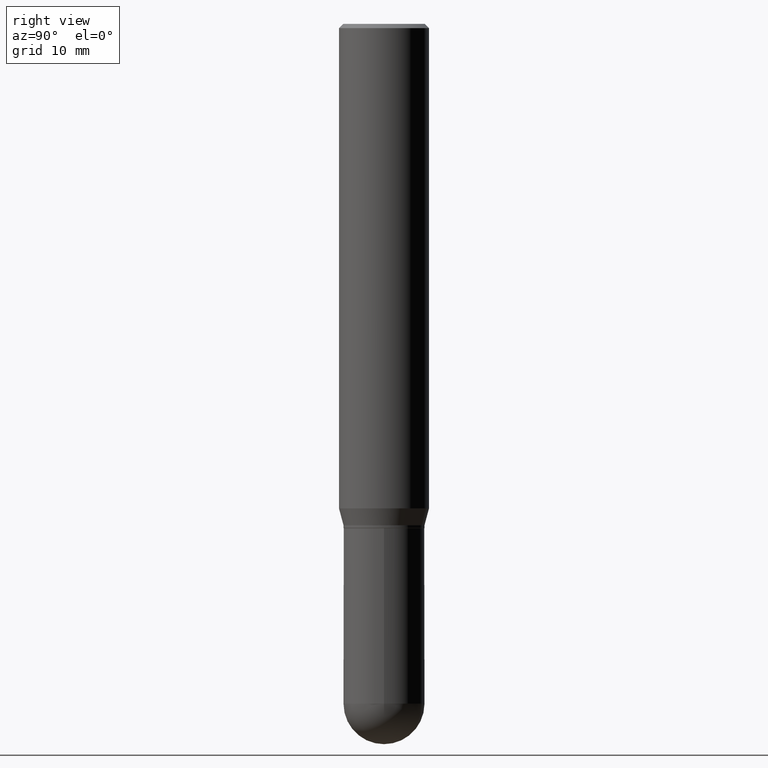
[diagram: clean part render]
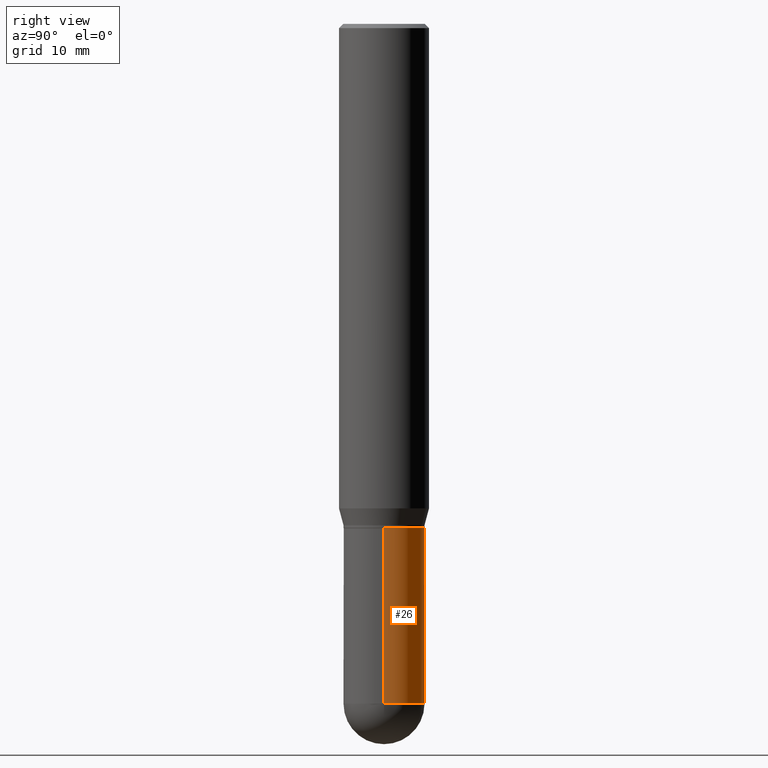
[diagram: same view with one face highlighted and labeled with its STEP entity id]
A machine part, right view. The second image highlights one B-rep face of the part: STEP entity #26.
In plain terms, the highlighted cylindrical surface (partial cylindrical patch) has radius 3.5712 mm, axis along (-0, 0, 1).
Its self-contained STEP definition (entity closure, byte-faithful):
#26 = ADVANCED_FACE ( 'NONE', ( #278 ), #209, .T. ) ;
#35 = CARTESIAN_POINT ( 'NONE',  ( -0.1406000000000000028, -6.174923620442310269E-15, -1.750000000000000222 ) ) ;
#47 = CARTESIAN_POINT ( 'NONE',  ( -0.1406000000000000583, -6.174923620442310269E-15, -2.359399999999999942 ) ) ;
#52 = CARTESIAN_POINT ( 'NONE',  ( 0.1406000000000000028, -9.818045524826893030E-16, 6.855904546769086274E-30 ) ) ;
#54 = CARTESIAN_POINT ( 'NONE',  ( 0.1406000000000000028, -7.091896895458194566E-15, -1.750000000000000222 ) ) ;
#57 = EDGE_CURVE ( 'NONE', #87, #416, #212, .T. ) ;
#71 = CARTESIAN_POINT ( 'NONE',  ( 4.279570410823989044E-29, -6.110092342975505460E-15, -1.750000000000000222 ) ) ;
#76 = VERTEX_POINT ( 'NONE', #47 ) ;
#87 = VERTEX_POINT ( 'NONE', #54 ) ;
#90 = LINE ( 'NONE', #52, #274 ) ;
#104 = CARTESIAN_POINT ( 'NONE',  ( -0.1406000000000000028, 9.990230864787008809E-16, -6.916022736898399140E-30 ) ) ;
#112 = ORIENTED_EDGE ( 'NONE', *, *, #297, .T. ) ;
#127 = CARTESIAN_POINT ( 'NONE',  ( 0.1406000000000000583, -8.155751259403701439E-15, -2.359399999999999942 ) ) ;
#164 = CIRCLE ( 'NONE', #269, 0.1406000000000000305 ) ;
#171 = ORIENTED_EDGE ( 'NONE', *, *, #363, .T. ) ;
#177 = DIRECTION ( 'NONE',  ( -2.445468806185136597E-29, 3.491481338843145583E-15, 1.000000000000000000 ) ) ;
#209 = CYLINDRICAL_SURFACE ( 'NONE', #222, 0.1406000000000000028 ) ;
#212 = CIRCLE ( 'NONE', #260, 0.1406000000000000028 ) ;
#221 = EDGE_CURVE ( 'NONE', #246, #87, #90, .T. ) ;
#222 = AXIS2_PLACEMENT_3D ( 'NONE', #446, #332, #498 ) ;
#233 = EDGE_CURVE ( 'NONE', #76, #416, #374, .T. ) ;
#246 = VERTEX_POINT ( 'NONE', #127 ) ;
#247 = CIRCLE ( 'NONE', #285, 0.1406000000000000305 ) ;
#256 = CARTESIAN_POINT ( 'NONE',  ( 5.769839101313211634E-29, -8.237801070866517629E-15, -2.359399999999999942 ) ) ;
#260 = AXIS2_PLACEMENT_3D ( 'NONE', #71, #503, #365 ) ;
#269 = AXIS2_PLACEMENT_3D ( 'NONE', #256, #509, #345 ) ;
#272 = EDGE_LOOP ( 'NONE', ( #112, #450, #460, #429, #171 ) ) ;
#274 = VECTOR ( 'NONE', #449, 39.37007874015748143 ) ;
#278 = FACE_OUTER_BOUND ( 'NONE', #272, .T. ) ;
#285 = AXIS2_PLACEMENT_3D ( 'NONE', #293, #177, #307 ) ;
#293 = CARTESIAN_POINT ( 'NONE',  ( 5.769839101313211634E-29, -8.237801070866517629E-15, -2.359399999999999942 ) ) ;
#297 = EDGE_CURVE ( 'NONE', #470, #76, #164, .T. ) ;
#307 = DIRECTION ( 'NONE',  ( 1.000000000000000000, -6.982962677686270655E-15, 0.000000000000000000 ) ) ;
#332 = DIRECTION ( 'NONE',  ( -2.445468806185136597E-29, 3.491481338843145583E-15, 1.000000000000000000 ) ) ;
#335 = DIRECTION ( 'NONE',  ( -2.445468806185136877E-29, 3.491481338843145188E-15, 1.000000000000000000 ) ) ;
#345 = DIRECTION ( 'NONE',  ( 1.000000000000000000, -6.982962677686270655E-15, 0.000000000000000000 ) ) ;
#363 = EDGE_CURVE ( 'NONE', #246, #470, #247, .T. ) ;
#365 = DIRECTION ( 'NONE',  ( 1.000000000000000000, -6.982962677686265133E-15, 0.000000000000000000 ) ) ;
#374 = LINE ( 'NONE', #104, #439 ) ;
#416 = VERTEX_POINT ( 'NONE', #35 ) ;
#429 = ORIENTED_EDGE ( 'NONE', *, *, #221, .F. ) ;
#439 = VECTOR ( 'NONE', #335, 39.37007874015748143 ) ;
#446 = CARTESIAN_POINT ( 'NONE',  ( 0.000000000000000000, 0.000000000000000000, 0.000000000000000000 ) ) ;
#449 = DIRECTION ( 'NONE',  ( -2.445468806185136877E-29, 3.491481338843145188E-15, 1.000000000000000000 ) ) ;
#450 = ORIENTED_EDGE ( 'NONE', *, *, #233, .T. ) ;
#460 = ORIENTED_EDGE ( 'NONE', *, *, #57, .F. ) ;
#462 = CARTESIAN_POINT ( 'NONE',  ( 9.818045524827470871E-16, 0.1405999999999918426, -2.359400000000000386 ) ) ;
#470 = VERTEX_POINT ( 'NONE', #462 ) ;
#498 = DIRECTION ( 'NONE',  ( 1.000000000000000000, -6.982962677686268288E-15, 4.876176775795936353E-29 ) ) ;
#503 = DIRECTION ( 'NONE',  ( -2.445468806185136597E-29, 3.491481338843145583E-15, 1.000000000000000000 ) ) ;
#509 = DIRECTION ( 'NONE',  ( -2.445468806185136597E-29, 3.491481338843145583E-15, 1.000000000000000000 ) ) ;